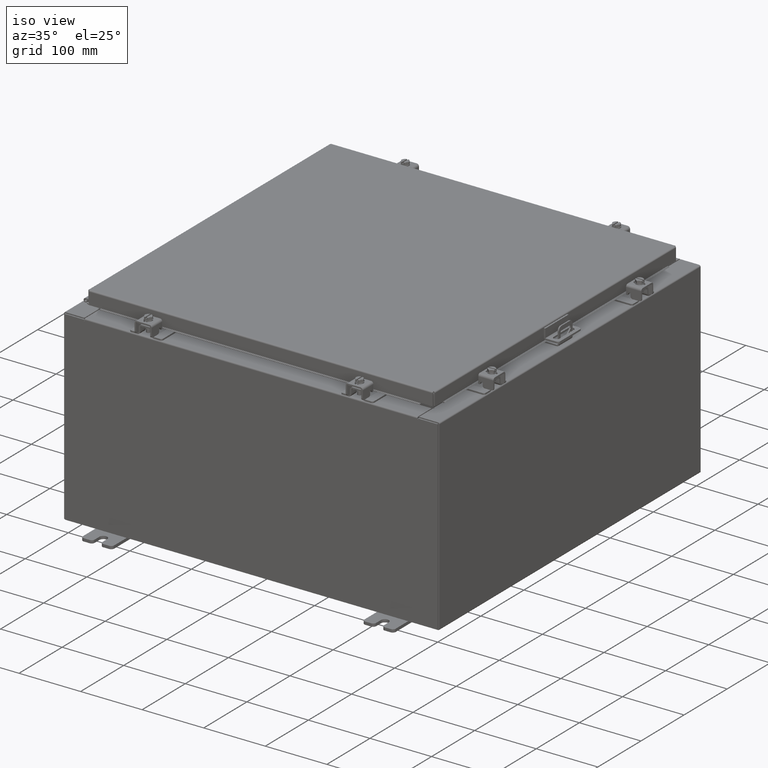
[diagram: clean part render]
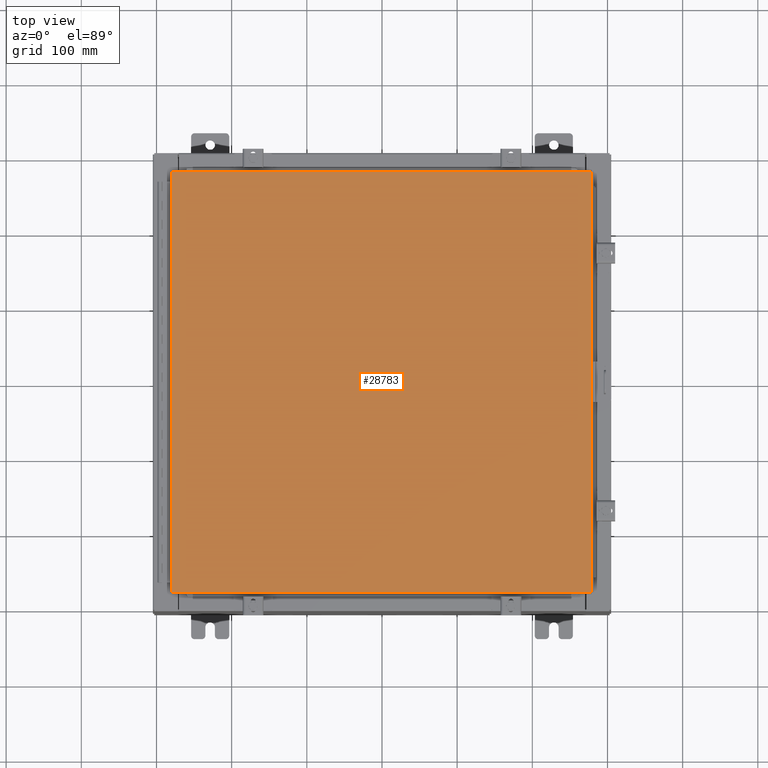
[diagram: tour spotlight — one face highlighted and labeled with its STEP entity id]
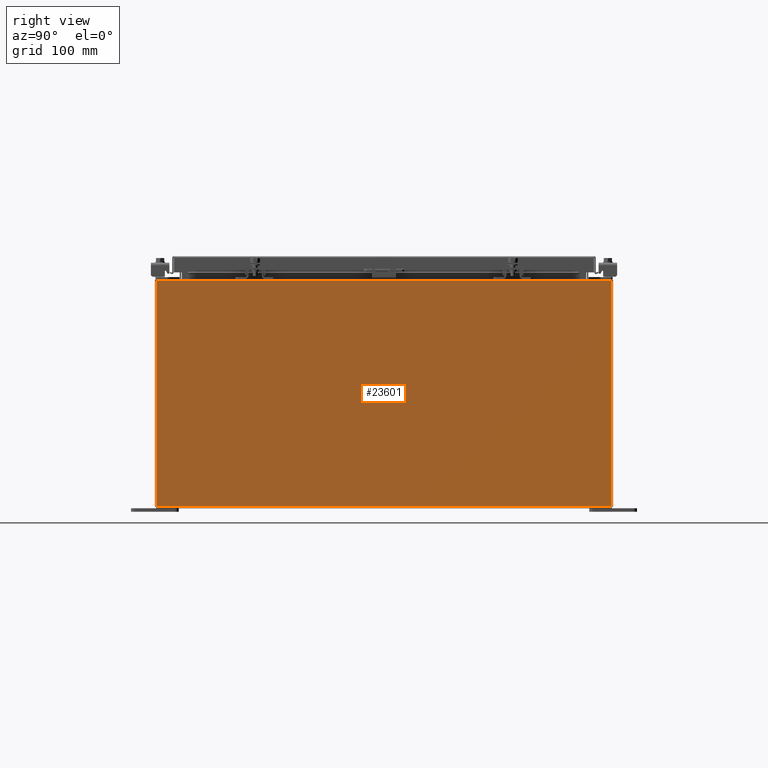
[diagram: tour spotlight — one face highlighted and labeled with its STEP entity id]
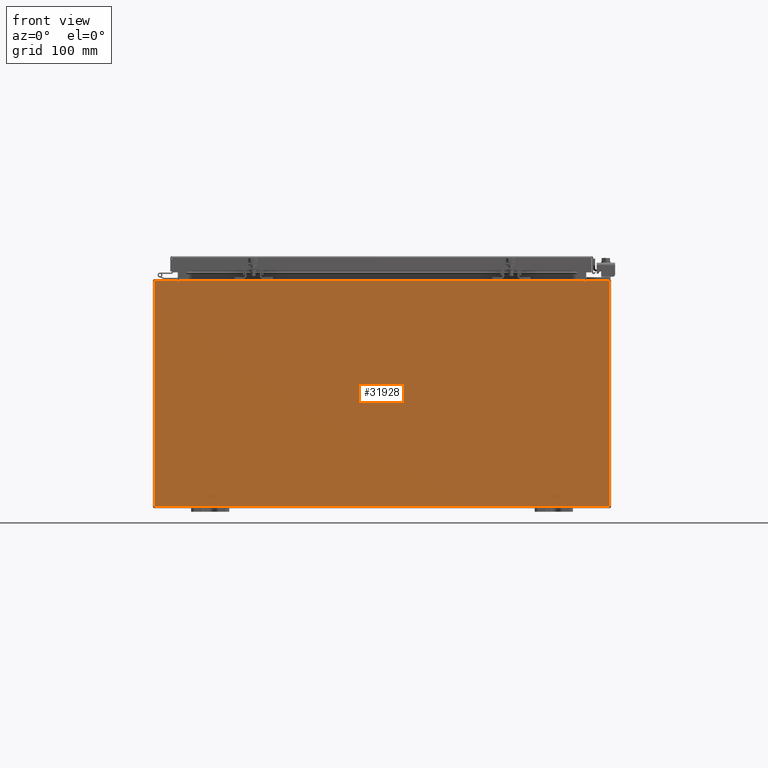
[diagram: tour spotlight — one face highlighted and labeled with its STEP entity id]
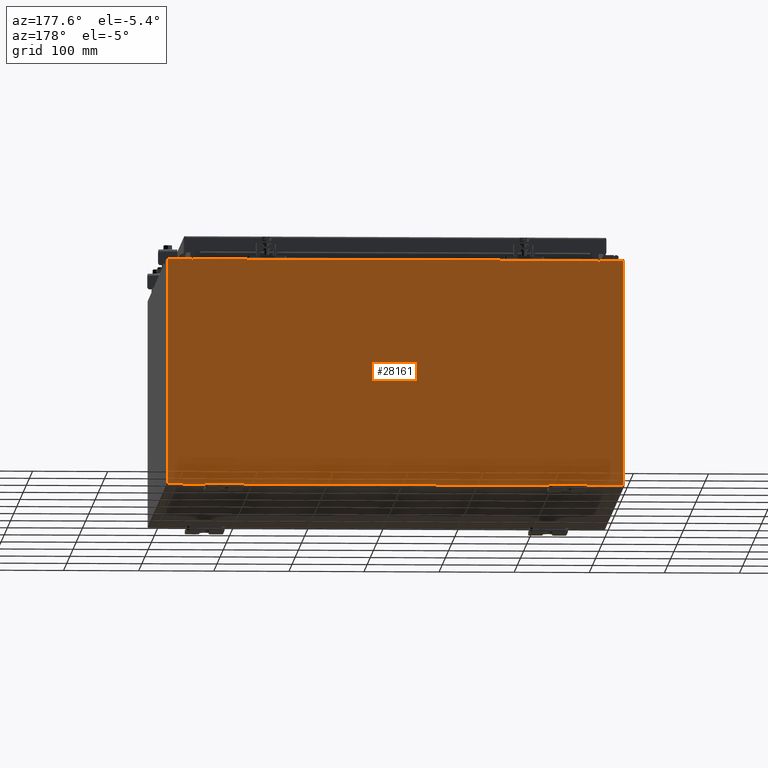
[diagram: tour spotlight — one face highlighted and labeled with its STEP entity id]
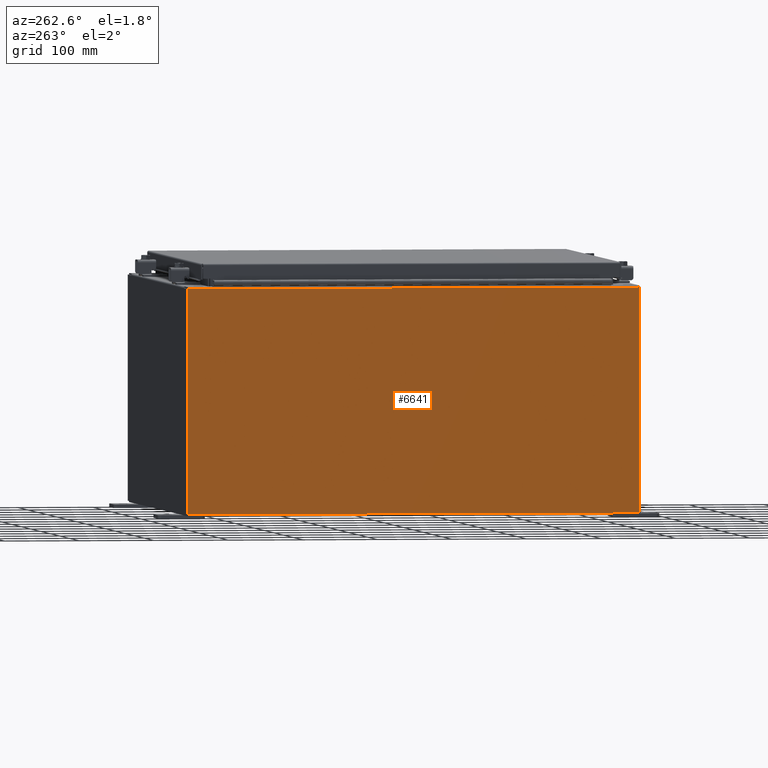
[diagram: tour spotlight — one face highlighted and labeled with its STEP entity id]
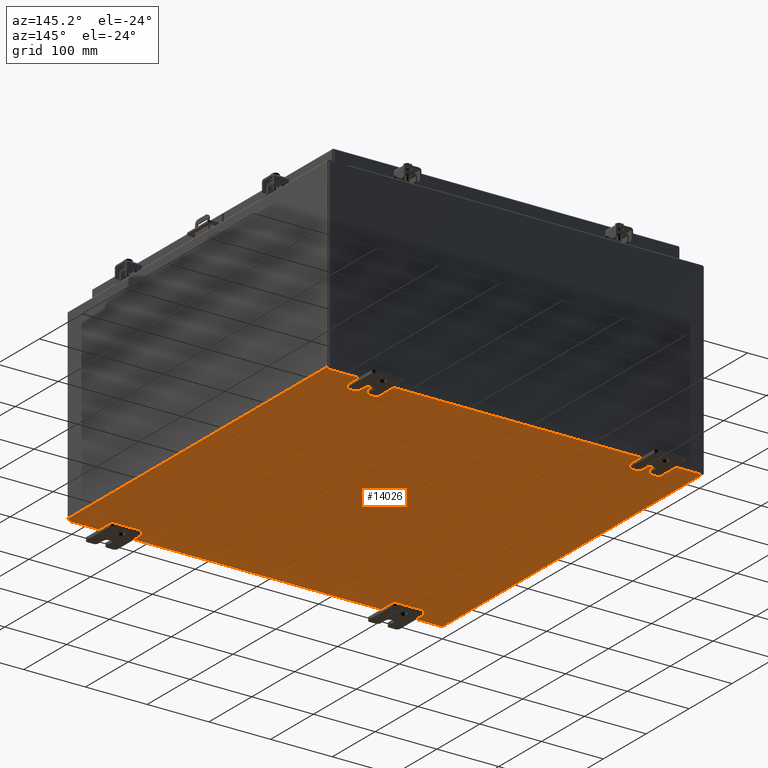
[diagram: tour spotlight — one face highlighted and labeled with its STEP entity id]
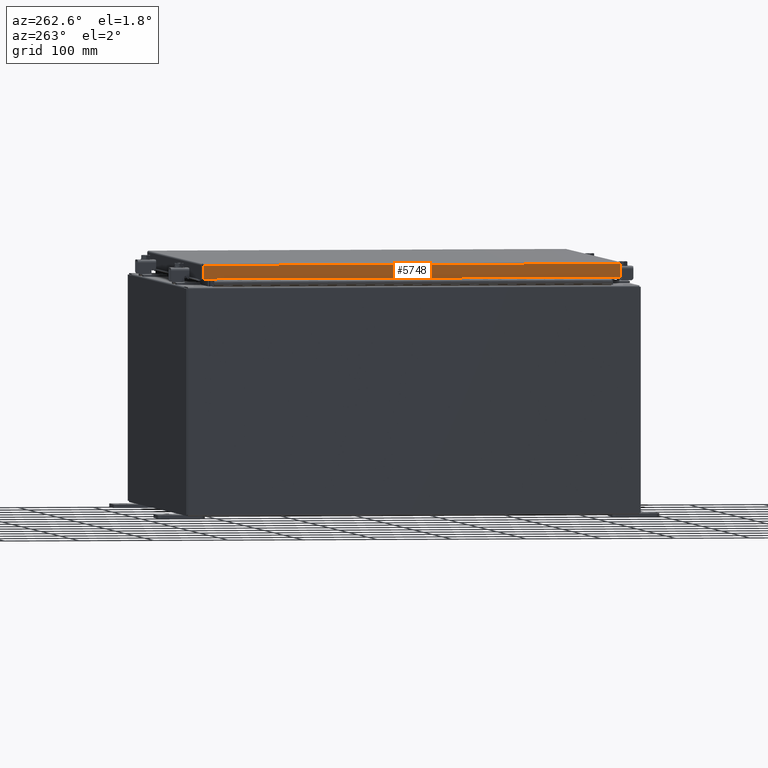
[diagram: tour spotlight — one face highlighted and labeled with its STEP entity id]
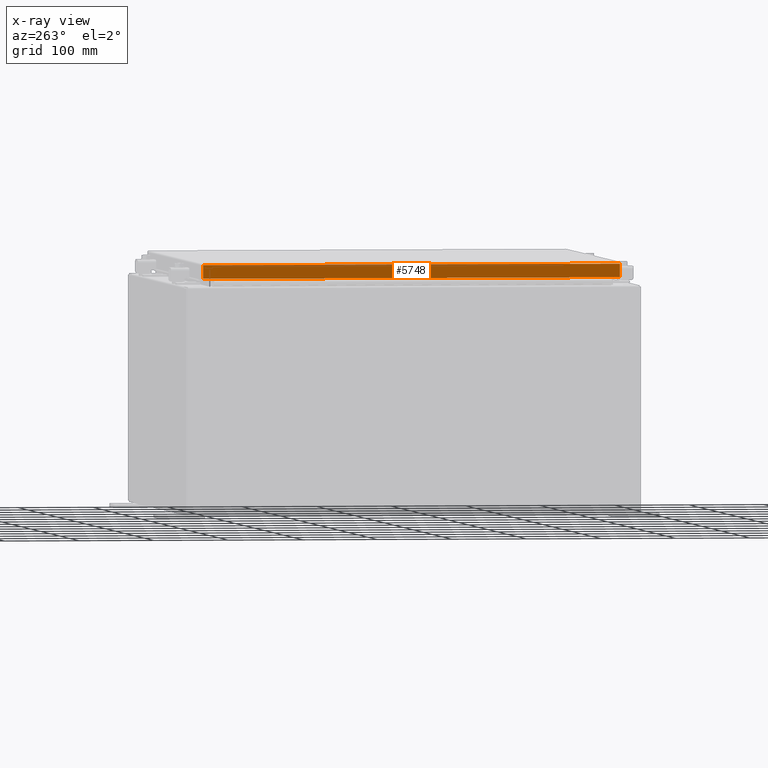
[diagram: x-ray of the same camera — body ghosted, this tour face saturated]
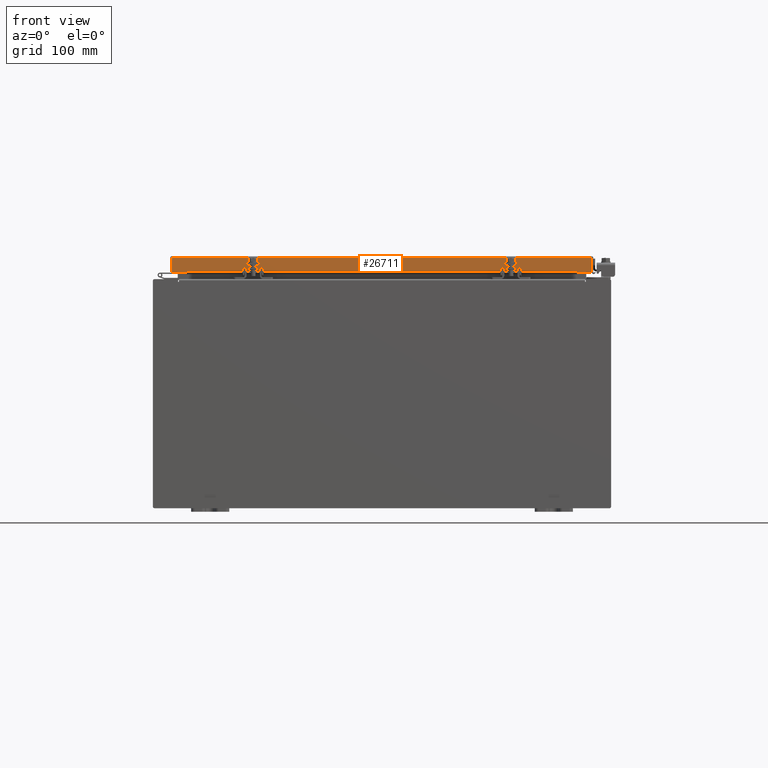
[diagram: tour spotlight — one face highlighted and labeled with its STEP entity id]
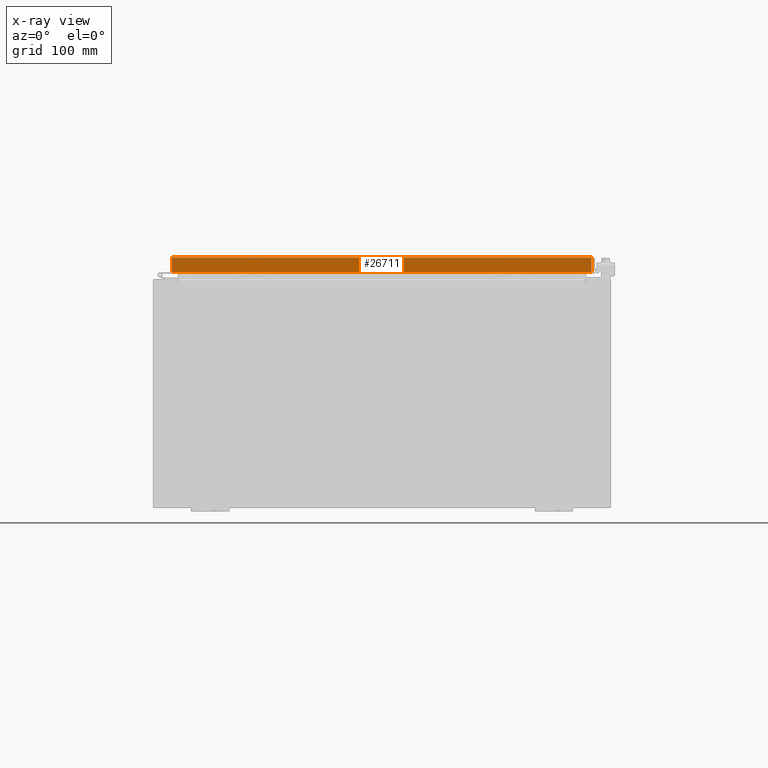
[diagram: x-ray of the same camera — body ghosted, this tour face saturated]
A machine part: a face-by-face anatomy tour. The part has 1709 B-rep faces; the first image is the clean iso view, then the 8 largest visible faces are spotlighted one at a time (largest first), each with its STEP entity span.

Face 1 — top view, entity #28783. In plain terms, the highlighted planar face has unit normal (0, 0, -1).
Definition (entity closure, byte-faithful):
#113 = LINE ( 'NONE', #10525, #25853 ) ;
#154 = CARTESIAN_POINT ( 'NONE',  ( 0.0000000000000000000, 0.0000000000000000000, 0.0000000000000000000 ) ) ;
#442 = VERTEX_POINT ( 'NONE', #1909 ) ;
#1909 = CARTESIAN_POINT ( 'NONE',  ( -10.99030000000000000, -11.00630000000000100, 8.878505979408856000E-016 ) ) ;
#2041 = ORIENTED_EDGE ( 'NONE', *, *, #30666, .T. ) ;
#2174 = FACE_OUTER_BOUND ( 'NONE', #20280, .T. ) ;
#4213 = CARTESIAN_POINT ( 'NONE',  ( 10.99029999999999800, 11.00629999999999600, -2.048885995248197400E-016 ) ) ;
#4281 = VECTOR ( 'NONE', #15780, 39.37007874015748100 ) ;
#5032 = PLANE ( 'NONE',  #29920 ) ;
#6039 = DIRECTION ( 'NONE',  ( 0.0000000000000000000, 1.000000000000000000, 0.0000000000000000000 ) ) ;
#6413 = LINE ( 'NONE', #26022, #32459 ) ;
#6589 = VERTEX_POINT ( 'NONE', #13123 ) ;
#6801 = VERTEX_POINT ( 'NONE', #4213 ) ;
#8318 = EDGE_CURVE ( 'NONE', #6589, #6801, #6413, .T. ) ;
#8830 = LINE ( 'NONE', #14427, #28162 ) ;
#10004 = DIRECTION ( 'NONE',  ( 0.0000000000000000000, 0.0000000000000000000, -1.000000000000000000 ) ) ;
#10404 = DIRECTION ( 'NONE',  ( 1.000000000000000000, -0.0000000000000000000, -0.0000000000000000000 ) ) ;
#10525 = CARTESIAN_POINT ( 'NONE',  ( -10.99030000000000000, -11.00630000000000100, 8.878505979408856000E-016 ) ) ;
#10740 = CARTESIAN_POINT ( 'NONE',  ( -10.99030000000000500, 11.00629999999999600, -1.348849946871729900E-015 ) ) ;
#11997 = DIRECTION ( 'NONE',  ( -1.000000000000000000, -0.0000000000000000000, -0.0000000000000000000 ) ) ;
#13123 = CARTESIAN_POINT ( 'NONE',  ( 10.99029999999999600, -11.00630000000000100, -2.048885995248197400E-016 ) ) ;
#13186 = ORIENTED_EDGE ( 'NONE', *, *, #30604, .T. ) ;
#14427 = CARTESIAN_POINT ( 'NONE',  ( 10.99029999999999800, 11.00629999999999600, -2.048885995248197400E-016 ) ) ;
#15780 = DIRECTION ( 'NONE',  ( 0.0000000000000000000, -1.000000000000000000, 0.0000000000000000000 ) ) ;
#17549 = LINE ( 'NONE', #10740, #4281 ) ;
#19850 = VERTEX_POINT ( 'NONE', #22688 ) ;
#20280 = EDGE_LOOP ( 'NONE', ( #13186, #31266, #31879, #2041 ) ) ;
#22688 = CARTESIAN_POINT ( 'NONE',  ( -10.99030000000000500, 11.00629999999999600, -1.348849946871729900E-015 ) ) ;
#23322 = EDGE_CURVE ( 'NONE', #6801, #19850, #8830, .T. ) ;
#25853 = VECTOR ( 'NONE', #10404, 39.37007874015748100 ) ;
#26022 = CARTESIAN_POINT ( 'NONE',  ( 10.99029999999999600, -11.00630000000000100, -2.048885995248197400E-016 ) ) ;
#27656 = DIRECTION ( 'NONE',  ( -1.000000000000000000, 0.0000000000000000000, -0.0000000000000000000 ) ) ;
#28162 = VECTOR ( 'NONE', #11997, 39.37007874015748100 ) ;
#28783 = ADVANCED_FACE ( 'NONE', ( #2174 ), #5032, .F. ) ;
#29920 = AXIS2_PLACEMENT_3D ( 'NONE', #154, #10004, #27656 ) ;
#30604 = EDGE_CURVE ( 'NONE', #442, #6589, #113, .T. ) ;
#30666 = EDGE_CURVE ( 'NONE', #19850, #442, #17549, .T. ) ;
#31266 = ORIENTED_EDGE ( 'NONE', *, *, #8318, .T. ) ;
#31879 = ORIENTED_EDGE ( 'NONE', *, *, #23322, .T. ) ;
#32459 = VECTOR ( 'NONE', #6039, 39.37007874015748100 ) ;

Face 2 — right view, entity #23601. In plain terms, the highlighted planar face has unit normal (-1, 0, 0).
Definition (entity closure, byte-faithful):
#103 = CARTESIAN_POINT ( 'NONE',  ( 11.99999999999999800, -11.92530000000000400, -4.204500978058384000E-014 ) ) ;
#229 = VERTEX_POINT ( 'NONE', #2768 ) ;
#578 = CARTESIAN_POINT ( 'NONE',  ( 11.99999999999999800, -11.92530000000000400, 0.01299999999999984700 ) ) ;
#1454 = ORIENTED_EDGE ( 'NONE', *, *, #29105, .T. ) ;
#2739 = AXIS2_PLACEMENT_3D ( 'NONE', #13084, #30792, #15611 ) ;
#2768 = CARTESIAN_POINT ( 'NONE',  ( 12.00000000000004100, -11.92530000000000400, 11.83760000000000000 ) ) ;
#3066 = VECTOR ( 'NONE', #6191, 39.37007874015748100 ) ;
#3585 = LINE ( 'NONE', #103, #29506 ) ;
#3956 = EDGE_CURVE ( 'NONE', #229, #22089, #3585, .T. ) ;
#6166 = EDGE_CURVE ( 'NONE', #8174, #229, #29761, .T. ) ;
#6191 = DIRECTION ( 'NONE',  ( -0.0000000000000000000, -1.000000000000000000, -0.0000000000000000000 ) ) ;
#7369 = CARTESIAN_POINT ( 'NONE',  ( 11.99999999999999800, -11.92530000000000400, 0.01299999999999984700 ) ) ;
#7465 = DIRECTION ( 'NONE',  ( -3.482016343714355500E-015, 0.0000000000000000000, -1.000000000000000000 ) ) ;
#8174 = VERTEX_POINT ( 'NONE', #30602 ) ;
#8499 = ORIENTED_EDGE ( 'NONE', *, *, #6166, .T. ) ;
#8973 = VERTEX_POINT ( 'NONE', #21523 ) ;
#9864 = DIRECTION ( 'NONE',  ( -0.0000000000000000000, -1.000000000000000000, -0.0000000000000000000 ) ) ;
#13084 = CARTESIAN_POINT ( 'NONE',  ( 11.99999999999999800, 0.0000000000000000000, -4.204500978058384000E-014 ) ) ;
#13595 = CARTESIAN_POINT ( 'NONE',  ( 12.00000000000004100, 11.92529999999999800, 11.83760000000000000 ) ) ;
#13750 = LINE ( 'NONE', #31970, #27205 ) ;
#14240 = VECTOR ( 'NONE', #9864, 39.37007874015748100 ) ;
#14256 = DIRECTION ( 'NONE',  ( 3.482016343714355500E-015, -1.832640180902292400E-016, 1.000000000000000000 ) ) ;
#15611 = DIRECTION ( 'NONE',  ( 3.482016343714355100E-015, 0.0000000000000000000, 1.000000000000000000 ) ) ;
#15716 = ORIENTED_EDGE ( 'NONE', *, *, #16547, .F. ) ;
#15873 = FACE_OUTER_BOUND ( 'NONE', #31564, .T. ) ;
#16547 = EDGE_CURVE ( 'NONE', #8973, #22089, #18195, .T. ) ;
#18195 = LINE ( 'NONE', #7369, #14240 ) ;
#20868 = ORIENTED_EDGE ( 'NONE', *, *, #3956, .T. ) ;
#21523 = CARTESIAN_POINT ( 'NONE',  ( 11.99999999999999800, 11.92529999999999600, 0.01299999999999984700 ) ) ;
#22089 = VERTEX_POINT ( 'NONE', #578 ) ;
#23601 = ADVANCED_FACE ( 'NONE', ( #15873 ), #25559, .F. ) ;
#25559 = PLANE ( 'NONE',  #2739 ) ;
#27205 = VECTOR ( 'NONE', #14256, 39.37007874015748100 ) ;
#29105 = EDGE_CURVE ( 'NONE', #8973, #8174, #13750, .T. ) ;
#29506 = VECTOR ( 'NONE', #7465, 39.37007874015748100 ) ;
#29761 = LINE ( 'NONE', #13595, #3066 ) ;
#30602 = CARTESIAN_POINT ( 'NONE',  ( 12.00000000000004100, 11.92529999999999600, 11.83760000000000000 ) ) ;
#30792 = DIRECTION ( 'NONE',  ( -1.000000000000000000, 0.0000000000000000000, 3.482016343714355100E-015 ) ) ;
#31564 = EDGE_LOOP ( 'NONE', ( #8499, #20868, #15716, #1454 ) ) ;
#31970 = CARTESIAN_POINT ( 'NONE',  ( 11.99999999999999800, 11.92529999999999800, -3.985953138565242700E-014 ) ) ;

Face 3 — front view, entity #31928. In plain terms, the highlighted planar face has unit normal (-0, 1, -0).
Definition (entity closure, byte-faithful):
#593 = EDGE_CURVE ( 'NONE', #26086, #9355, #11848, .T. ) ;
#681 = EDGE_CURVE ( 'NONE', #27405, #3138, #28864, .T. ) ;
#748 = LINE ( 'NONE', #8692, #18988 ) ;
#947 = ORIENTED_EDGE ( 'NONE', *, *, #27692, .F. ) ;
#999 = CARTESIAN_POINT ( 'NONE',  ( -10.67455000000000200, 0.0000000000000000000, 5.925300000000000000 ) ) ;
#1530 = DIRECTION ( 'NONE',  ( 1.000000000000000000, 0.0000000000000000000, 0.0000000000000000000 ) ) ;
#1613 = ORIENTED_EDGE ( 'NONE', *, *, #20791, .F. ) ;
#2273 = FACE_OUTER_BOUND ( 'NONE', #26865, .T. ) ;
#2829 = ORIENTED_EDGE ( 'NONE', *, *, #593, .T. ) ;
#2980 = VECTOR ( 'NONE', #7567, 39.37007874015748100 ) ;
#3138 = VERTEX_POINT ( 'NONE', #6871 ) ;
#3639 = ORIENTED_EDGE ( 'NONE', *, *, #12928, .T. ) ;
#4611 = VERTEX_POINT ( 'NONE', #30053 ) ;
#4618 = CIRCLE ( 'NONE', #21384, 0.01867499999999949400 ) ;
#4791 = DIRECTION ( 'NONE',  ( -0.0000000000000000000, -0.0000000000000000000, 1.000000000000000000 ) ) ;
#5111 = CARTESIAN_POINT ( 'NONE',  ( -10.63720000000000400, -0.0000000000000000000, 0.0000000000000000000 ) ) ;
#5262 = VECTOR ( 'NONE', #4791, 39.37007874015748100 ) ;
#5301 = LINE ( 'NONE', #25095, #11890 ) ;
#5455 = CARTESIAN_POINT ( 'NONE',  ( -11.92530000000000000, 0.0000000000000000000, -5.925299999999999100 ) ) ;
#5613 = EDGE_CURVE ( 'NONE', #3138, #14082, #4618, .T. ) ;
#5690 = CARTESIAN_POINT ( 'NONE',  ( 10.63720000000000400, 0.0000000000000000000, 5.874950000000001000 ) ) ;
#5868 = EDGE_CURVE ( 'NONE', #27630, #26086, #29370, .T. ) ;
#6565 = ORIENTED_EDGE ( 'NONE', *, *, #13876, .F. ) ;
#6871 = CARTESIAN_POINT ( 'NONE',  ( 10.67455000000000200, 0.0000000000000000000, 5.874950000000001000 ) ) ;
#6937 = ORIENTED_EDGE ( 'NONE', *, *, #5613, .F. ) ;
#7567 = DIRECTION ( 'NONE',  ( 0.0000000000000000000, 0.0000000000000000000, -1.000000000000000000 ) ) ;
#7685 = CARTESIAN_POINT ( 'NONE',  ( 10.63720000000000400, 0.0000000000000000000, 5.912300000000001000 ) ) ;
#8692 = CARTESIAN_POINT ( 'NONE',  ( 11.92530000000000000, 0.0000000000000000000, 5.925300000000001800 ) ) ;
#8764 = CIRCLE ( 'NONE', #13206, 0.01867499999999949400 ) ;
#9146 = CARTESIAN_POINT ( 'NONE',  ( 10.65587500000000200, 0.0000000000000000000, 5.874950000000001000 ) ) ;
#9355 = VERTEX_POINT ( 'NONE', #23279 ) ;
#9779 = DIRECTION ( 'NONE',  ( 0.0000000000000000000, 0.0000000000000000000, 1.000000000000000000 ) ) ;
#9989 = CARTESIAN_POINT ( 'NONE',  ( -10.65587500000000200, 0.0000000000000000000, 5.874950000000001000 ) ) ;
#10012 = DIRECTION ( 'NONE',  ( 0.0000000000000000000, 0.0000000000000000000, 1.000000000000000000 ) ) ;
#10942 = DIRECTION ( 'NONE',  ( 0.0000000000000000000, -1.000000000000000000, 0.0000000000000000000 ) ) ;
#10982 = LINE ( 'NONE', #18877, #29563 ) ;
#11103 = LINE ( 'NONE', #5111, #31292 ) ;
#11641 = DIRECTION ( 'NONE',  ( 0.0000000000000000000, 0.0000000000000000000, -1.000000000000000000 ) ) ;
#11802 = ORIENTED_EDGE ( 'NONE', *, *, #681, .F. ) ;
#11848 = LINE ( 'NONE', #24829, #5262 ) ;
#11890 = VECTOR ( 'NONE', #10012, 39.37007874015748100 ) ;
#11904 = CARTESIAN_POINT ( 'NONE',  ( -10.63720000000000400, -1.707404996040164500E-016, 5.912300000000001000 ) ) ;
#12505 = DIRECTION ( 'NONE',  ( 0.0000000000000000000, 0.0000000000000000000, -1.000000000000000000 ) ) ;
#12928 = EDGE_CURVE ( 'NONE', #17511, #19185, #24915, .T. ) ;
#13206 = AXIS2_PLACEMENT_3D ( 'NONE', #9989, #27642, #12505 ) ;
#13220 = EDGE_CURVE ( 'NONE', #27693, #17321, #8764, .T. ) ;
#13699 = CARTESIAN_POINT ( 'NONE',  ( -11.92530000000000000, 0.0000000000000000000, 5.925300000000000000 ) ) ;
#13876 = EDGE_CURVE ( 'NONE', #17321, #30203, #5301, .T. ) ;
#14082 = VERTEX_POINT ( 'NONE', #5690 ) ;
#15147 = CARTESIAN_POINT ( 'NONE',  ( -11.92530000000000000, 0.0000000000000000000, -5.925299999999999100 ) ) ;
#15898 = VECTOR ( 'NONE', #17684, 39.37007874015748100 ) ;
#16147 = DIRECTION ( 'NONE',  ( 0.0000000000000000000, 0.0000000000000000000, -1.000000000000000000 ) ) ;
#17077 = VECTOR ( 'NONE', #28862, 39.37007874015748100 ) ;
#17321 = VERTEX_POINT ( 'NONE', #18742 ) ;
#17424 = VECTOR ( 'NONE', #1530, 39.37007874015748100 ) ;
#17511 = VERTEX_POINT ( 'NONE', #11904 ) ;
#17609 = VECTOR ( 'NONE', #9779, 39.37007874015748100 ) ;
#17684 = DIRECTION ( 'NONE',  ( -1.000000000000000000, -0.0000000000000000000, -0.0000000000000000000 ) ) ;
#18645 = LINE ( 'NONE', #13699, #17077 ) ;
#18742 = CARTESIAN_POINT ( 'NONE',  ( -10.67455000000000200, 0.0000000000000000000, 5.874950000000001000 ) ) ;
#18864 = EDGE_CURVE ( 'NONE', #27405, #4611, #10982, .T. ) ;
#18877 = CARTESIAN_POINT ( 'NONE',  ( -11.92530000000000000, 0.0000000000000000000, 5.925300000000000000 ) ) ;
#18988 = VECTOR ( 'NONE', #16147, 39.37007874015748100 ) ;
#19185 = VERTEX_POINT ( 'NONE', #7685 ) ;
#20077 = DIRECTION ( 'NONE',  ( 0.0000000000000000000, 0.0000000000000000000, -1.000000000000000000 ) ) ;
#20406 = ORIENTED_EDGE ( 'NONE', *, *, #27401, .T. ) ;
#20791 = EDGE_CURVE ( 'NONE', #14082, #19185, #31886, .T. ) ;
#20928 = PLANE ( 'NONE',  #23235 ) ;
#21384 = AXIS2_PLACEMENT_3D ( 'NONE', #9146, #26772, #11641 ) ;
#22398 = ORIENTED_EDGE ( 'NONE', *, *, #31509, .T. ) ;
#23235 = AXIS2_PLACEMENT_3D ( 'NONE', #26040, #10942, #28607 ) ;
#23279 = CARTESIAN_POINT ( 'NONE',  ( -11.92530000000000000, 0.0000000000000000000, 5.925300000000000000 ) ) ;
#23743 = CARTESIAN_POINT ( 'NONE',  ( 10.67455000000000200, 0.0000000000000000000, 5.925300000000001800 ) ) ;
#23837 = DIRECTION ( 'NONE',  ( 1.000000000000000000, 0.0000000000000000000, 4.581600452255731000E-017 ) ) ;
#24469 = ORIENTED_EDGE ( 'NONE', *, *, #18864, .T. ) ;
#24623 = CARTESIAN_POINT ( 'NONE',  ( 11.92530000000000000, 0.0000000000000000000, -5.925299999999999100 ) ) ;
#24829 = CARTESIAN_POINT ( 'NONE',  ( -11.92530000000000000, 0.0000000000000000000, 5.925300000000000000 ) ) ;
#24915 = LINE ( 'NONE', #31561, #17424 ) ;
#25095 = CARTESIAN_POINT ( 'NONE',  ( -10.67455000000000200, -0.0000000000000000000, 0.0000000000000000000 ) ) ;
#26040 = CARTESIAN_POINT ( 'NONE',  ( 0.0000000000000000000, 0.0000000000000000000, 0.0000000000000000000 ) ) ;
#26086 = VERTEX_POINT ( 'NONE', #5455 ) ;
#26772 = DIRECTION ( 'NONE',  ( -0.0000000000000000000, 1.000000000000000000, -0.0000000000000000000 ) ) ;
#26865 = EDGE_LOOP ( 'NONE', ( #6565, #31627, #947, #3639, #1613, #6937, #11802, #24469, #20406, #27617, #2829, #22398 ) ) ;
#27296 = CARTESIAN_POINT ( 'NONE',  ( -10.63720000000000400, -0.0000000000000000000, 5.874950000000001000 ) ) ;
#27401 = EDGE_CURVE ( 'NONE', #4611, #27630, #748, .T. ) ;
#27405 = VERTEX_POINT ( 'NONE', #23743 ) ;
#27617 = ORIENTED_EDGE ( 'NONE', *, *, #5868, .T. ) ;
#27630 = VERTEX_POINT ( 'NONE', #24623 ) ;
#27642 = DIRECTION ( 'NONE',  ( -0.0000000000000000000, 1.000000000000000000, -0.0000000000000000000 ) ) ;
#27692 = EDGE_CURVE ( 'NONE', #17511, #27693, #11103, .T. ) ;
#27693 = VERTEX_POINT ( 'NONE', #27296 ) ;
#27722 = CARTESIAN_POINT ( 'NONE',  ( 10.67455000000000200, 0.0000000000000000000, 0.0000000000000000000 ) ) ;
#28607 = DIRECTION ( 'NONE',  ( 0.0000000000000000000, -0.0000000000000000000, -1.000000000000000000 ) ) ;
#28862 = DIRECTION ( 'NONE',  ( 1.000000000000000000, 0.0000000000000000000, 4.581600452255731000E-017 ) ) ;
#28864 = LINE ( 'NONE', #27722, #2980 ) ;
#29370 = LINE ( 'NONE', #15147, #15898 ) ;
#29563 = VECTOR ( 'NONE', #23837, 39.37007874015748100 ) ;
#29989 = CARTESIAN_POINT ( 'NONE',  ( 10.63720000000000400, 0.0000000000000000000, 0.0000000000000000000 ) ) ;
#30053 = CARTESIAN_POINT ( 'NONE',  ( 11.92530000000000000, 0.0000000000000000000, 5.925300000000001800 ) ) ;
#30203 = VERTEX_POINT ( 'NONE', #999 ) ;
#31292 = VECTOR ( 'NONE', #20077, 39.37007874015748100 ) ;
#31509 = EDGE_CURVE ( 'NONE', #9355, #30203, #18645, .T. ) ;
#31561 = CARTESIAN_POINT ( 'NONE',  ( -10.63720000000000400, -1.707404996040164500E-016, 5.912300000000001000 ) ) ;
#31627 = ORIENTED_EDGE ( 'NONE', *, *, #13220, .F. ) ;
#31886 = LINE ( 'NONE', #29989, #17609 ) ;
#31928 = ADVANCED_FACE ( 'NONE', ( #2273 ), #20928, .F. ) ;

Face 4 — auxiliary view, entity #28161. In plain terms, the highlighted planar face has unit normal (0, -1, 0).
Definition (entity closure, byte-faithful):
#209 = CARTESIAN_POINT ( 'NONE',  ( -10.67455000000000200, 0.0000000000000000000, 5.874950000000001000 ) ) ;
#895 = LINE ( 'NONE', #2860, #26672 ) ;
#1443 = VERTEX_POINT ( 'NONE', #30574 ) ;
#1761 = EDGE_CURVE ( 'NONE', #31567, #28486, #25653, .T. ) ;
#2678 = LINE ( 'NONE', #22715, #15058 ) ;
#2793 = EDGE_LOOP ( 'NONE', ( #6756, #7799, #29432, #11905, #27572, #32238, #29410, #16721, #22687, #23435, #21373, #10671 ) ) ;
#2806 = CARTESIAN_POINT ( 'NONE',  ( 10.67455000000000200, 0.0000000000000000000, 5.874950000000001000 ) ) ;
#2860 = CARTESIAN_POINT ( 'NONE',  ( 10.67455000000000200, 0.0000000000000000000, 0.0000000000000000000 ) ) ;
#2911 = LINE ( 'NONE', #6984, #8665 ) ;
#3157 = CARTESIAN_POINT ( 'NONE',  ( 11.92530000000000000, 0.0000000000000000000, -5.925299999999999100 ) ) ;
#5082 = DIRECTION ( 'NONE',  ( 0.0000000000000000000, -1.000000000000000000, 0.0000000000000000000 ) ) ;
#5463 = EDGE_CURVE ( 'NONE', #15247, #26019, #8494, .T. ) ;
#5586 = CIRCLE ( 'NONE', #27876, 0.01867499999999949400 ) ;
#5771 = LINE ( 'NONE', #8899, #24988 ) ;
#5967 = DIRECTION ( 'NONE',  ( 1.000000000000000000, 0.0000000000000000000, 4.581600452255731000E-017 ) ) ;
#6756 = ORIENTED_EDGE ( 'NONE', *, *, #31765, .F. ) ;
#6984 = CARTESIAN_POINT ( 'NONE',  ( -10.63720000000000400, -1.707404996040164500E-016, 5.912300000000001000 ) ) ;
#7076 = LINE ( 'NONE', #26957, #20413 ) ;
#7207 = EDGE_CURVE ( 'NONE', #18221, #13199, #15000, .T. ) ;
#7388 = VECTOR ( 'NONE', #30610, 39.37007874015748100 ) ;
#7684 = DIRECTION ( 'NONE',  ( 0.0000000000000000000, 0.0000000000000000000, 1.000000000000000000 ) ) ;
#7799 = ORIENTED_EDGE ( 'NONE', *, *, #29738, .F. ) ;
#8494 = LINE ( 'NONE', #26120, #21829 ) ;
#8665 = VECTOR ( 'NONE', #12085, 39.37007874015748100 ) ;
#8899 = CARTESIAN_POINT ( 'NONE',  ( 11.92530000000000000, 0.0000000000000000000, 5.925300000000001800 ) ) ;
#10095 = CIRCLE ( 'NONE', #26345, 0.01867499999999949400 ) ;
#10099 = CARTESIAN_POINT ( 'NONE',  ( -11.92530000000000000, 0.0000000000000000000, -5.925299999999999100 ) ) ;
#10293 = DIRECTION ( 'NONE',  ( 0.0000000000000000000, 0.0000000000000000000, 1.000000000000000000 ) ) ;
#10671 = ORIENTED_EDGE ( 'NONE', *, *, #7207, .T. ) ;
#10921 = CARTESIAN_POINT ( 'NONE',  ( -10.65587500000000200, 0.0000000000000000000, 5.874950000000001000 ) ) ;
#11011 = DIRECTION ( 'NONE',  ( -1.000000000000000000, -0.0000000000000000000, -0.0000000000000000000 ) ) ;
#11724 = DIRECTION ( 'NONE',  ( -0.0000000000000000000, 1.000000000000000000, -0.0000000000000000000 ) ) ;
#11820 = DIRECTION ( 'NONE',  ( 0.0000000000000000000, 0.0000000000000000000, -1.000000000000000000 ) ) ;
#11905 = ORIENTED_EDGE ( 'NONE', *, *, #18286, .T. ) ;
#11919 = VERTEX_POINT ( 'NONE', #209 ) ;
#12085 = DIRECTION ( 'NONE',  ( 1.000000000000000000, 0.0000000000000000000, 0.0000000000000000000 ) ) ;
#12895 = CARTESIAN_POINT ( 'NONE',  ( -11.92530000000000000, 0.0000000000000000000, 5.925300000000000000 ) ) ;
#13199 = VERTEX_POINT ( 'NONE', #17472 ) ;
#13422 = DIRECTION ( 'NONE',  ( 0.0000000000000000000, 0.0000000000000000000, -1.000000000000000000 ) ) ;
#14378 = VERTEX_POINT ( 'NONE', #19753 ) ;
#14981 = CARTESIAN_POINT ( 'NONE',  ( 0.0000000000000000000, 0.0000000000000000000, 0.0000000000000000000 ) ) ;
#15000 = LINE ( 'NONE', #31011, #27670 ) ;
#15058 = VECTOR ( 'NONE', #7684, 39.37007874015748100 ) ;
#15247 = VERTEX_POINT ( 'NONE', #3157 ) ;
#15316 = DIRECTION ( 'NONE',  ( 0.0000000000000000000, 0.0000000000000000000, -1.000000000000000000 ) ) ;
#16552 = VECTOR ( 'NONE', #10293, 39.37007874015748100 ) ;
#16721 = ORIENTED_EDGE ( 'NONE', *, *, #26282, .T. ) ;
#16976 = FACE_OUTER_BOUND ( 'NONE', #2793, .T. ) ;
#17472 = CARTESIAN_POINT ( 'NONE',  ( -10.67455000000000200, 0.0000000000000000000, 5.925300000000000000 ) ) ;
#18221 = VERTEX_POINT ( 'NONE', #29455 ) ;
#18286 = EDGE_CURVE ( 'NONE', #19100, #28486, #2911, .T. ) ;
#18957 = EDGE_CURVE ( 'NONE', #19100, #1443, #7076, .T. ) ;
#19100 = VERTEX_POINT ( 'NONE', #22384 ) ;
#19753 = CARTESIAN_POINT ( 'NONE',  ( 10.67455000000000200, 0.0000000000000000000, 5.925300000000001800 ) ) ;
#20183 = VERTEX_POINT ( 'NONE', #20247 ) ;
#20247 = CARTESIAN_POINT ( 'NONE',  ( 11.92530000000000000, 0.0000000000000000000, 5.925300000000001800 ) ) ;
#20413 = VECTOR ( 'NONE', #11820, 39.37007874015748100 ) ;
#20717 = LINE ( 'NONE', #12895, #7388 ) ;
#20887 = DIRECTION ( 'NONE',  ( 1.000000000000000000, 0.0000000000000000000, 4.581600452255731000E-017 ) ) ;
#20952 = CARTESIAN_POINT ( 'NONE',  ( -11.92530000000000000, 0.0000000000000000000, 5.925300000000000000 ) ) ;
#21373 = ORIENTED_EDGE ( 'NONE', *, *, #24863, .T. ) ;
#21626 = CARTESIAN_POINT ( 'NONE',  ( 10.63720000000000400, 0.0000000000000000000, 5.874950000000001000 ) ) ;
#21829 = VECTOR ( 'NONE', #11011, 39.37007874015748100 ) ;
#22384 = CARTESIAN_POINT ( 'NONE',  ( -10.63720000000000400, -1.707404996040164500E-016, 5.912300000000001000 ) ) ;
#22587 = DIRECTION ( 'NONE',  ( 0.0000000000000000000, -0.0000000000000000000, -1.000000000000000000 ) ) ;
#22657 = VERTEX_POINT ( 'NONE', #2806 ) ;
#22687 = ORIENTED_EDGE ( 'NONE', *, *, #22957, .T. ) ;
#22715 = CARTESIAN_POINT ( 'NONE',  ( -10.67455000000000200, -0.0000000000000000000, 0.0000000000000000000 ) ) ;
#22957 = EDGE_CURVE ( 'NONE', #20183, #15247, #5771, .T. ) ;
#23435 = ORIENTED_EDGE ( 'NONE', *, *, #5463, .T. ) ;
#23796 = LINE ( 'NONE', #20952, #30584 ) ;
#23941 = DIRECTION ( 'NONE',  ( 0.0000000000000000000, 0.0000000000000000000, -1.000000000000000000 ) ) ;
#24857 = EDGE_CURVE ( 'NONE', #14378, #22657, #895, .T. ) ;
#24863 = EDGE_CURVE ( 'NONE', #26019, #18221, #20717, .T. ) ;
#24988 = VECTOR ( 'NONE', #23941, 39.37007874015748100 ) ;
#25028 = PLANE ( 'NONE',  #31037 ) ;
#25378 = CARTESIAN_POINT ( 'NONE',  ( 10.63720000000000400, 0.0000000000000000000, 0.0000000000000000000 ) ) ;
#25653 = LINE ( 'NONE', #25378, #16552 ) ;
#26019 = VERTEX_POINT ( 'NONE', #10099 ) ;
#26120 = CARTESIAN_POINT ( 'NONE',  ( -11.92530000000000000, 0.0000000000000000000, -5.925299999999999100 ) ) ;
#26282 = EDGE_CURVE ( 'NONE', #14378, #20183, #23796, .T. ) ;
#26345 = AXIS2_PLACEMENT_3D ( 'NONE', #26857, #11724, #29424 ) ;
#26672 = VECTOR ( 'NONE', #15316, 39.37007874015748100 ) ;
#26857 = CARTESIAN_POINT ( 'NONE',  ( 10.65587500000000200, 0.0000000000000000000, 5.874950000000001000 ) ) ;
#26957 = CARTESIAN_POINT ( 'NONE',  ( -10.63720000000000400, -0.0000000000000000000, 0.0000000000000000000 ) ) ;
#27572 = ORIENTED_EDGE ( 'NONE', *, *, #1761, .F. ) ;
#27670 = VECTOR ( 'NONE', #20887, 39.37007874015748100 ) ;
#27876 = AXIS2_PLACEMENT_3D ( 'NONE', #10921, #28592, #13422 ) ;
#28161 = ADVANCED_FACE ( 'NONE', ( #16976 ), #25028, .F. ) ;
#28486 = VERTEX_POINT ( 'NONE', #28807 ) ;
#28592 = DIRECTION ( 'NONE',  ( -0.0000000000000000000, 1.000000000000000000, -0.0000000000000000000 ) ) ;
#28807 = CARTESIAN_POINT ( 'NONE',  ( 10.63720000000000400, 0.0000000000000000000, 5.912300000000001000 ) ) ;
#29410 = ORIENTED_EDGE ( 'NONE', *, *, #24857, .F. ) ;
#29424 = DIRECTION ( 'NONE',  ( 0.0000000000000000000, 0.0000000000000000000, -1.000000000000000000 ) ) ;
#29432 = ORIENTED_EDGE ( 'NONE', *, *, #18957, .F. ) ;
#29455 = CARTESIAN_POINT ( 'NONE',  ( -11.92530000000000000, 0.0000000000000000000, 5.925300000000000000 ) ) ;
#29738 = EDGE_CURVE ( 'NONE', #1443, #11919, #5586, .T. ) ;
#30337 = EDGE_CURVE ( 'NONE', #22657, #31567, #10095, .T. ) ;
#30574 = CARTESIAN_POINT ( 'NONE',  ( -10.63720000000000400, -0.0000000000000000000, 5.874950000000001000 ) ) ;
#30584 = VECTOR ( 'NONE', #5967, 39.37007874015748100 ) ;
#30610 = DIRECTION ( 'NONE',  ( -0.0000000000000000000, -0.0000000000000000000, 1.000000000000000000 ) ) ;
#31011 = CARTESIAN_POINT ( 'NONE',  ( -11.92530000000000000, 0.0000000000000000000, 5.925300000000000000 ) ) ;
#31037 = AXIS2_PLACEMENT_3D ( 'NONE', #14981, #5082, #22587 ) ;
#31567 = VERTEX_POINT ( 'NONE', #21626 ) ;
#31765 = EDGE_CURVE ( 'NONE', #11919, #13199, #2678, .T. ) ;
#32238 = ORIENTED_EDGE ( 'NONE', *, *, #30337, .F. ) ;

Face 5 — auxiliary view, entity #6641. In plain terms, the highlighted planar face has unit normal (1, 0, 0).
Definition (entity closure, byte-faithful):
#725 = CARTESIAN_POINT ( 'NONE',  ( -12.00000000000000400, -11.92530000000000400, -4.204500978058385200E-014 ) ) ;
#3171 = CARTESIAN_POINT ( 'NONE',  ( -12.00000000000004400, -11.92530000000000000, 11.83760000000000000 ) ) ;
#4665 = CARTESIAN_POINT ( 'NONE',  ( -12.00000000000000400, 11.92529999999999800, 0.01299999999999984700 ) ) ;
#5113 = CARTESIAN_POINT ( 'NONE',  ( -12.00000000000004400, -11.92530000000000400, 11.83760000000000000 ) ) ;
#5476 = VECTOR ( 'NONE', #24712, 39.37007874015748100 ) ;
#5902 = CARTESIAN_POINT ( 'NONE',  ( -12.00000000000000400, 11.92529999999999800, -4.204500978058385200E-014 ) ) ;
#6107 = ORIENTED_EDGE ( 'NONE', *, *, #22230, .T. ) ;
#6641 = ADVANCED_FACE ( 'NONE', ( #13859 ), #20925, .F. ) ;
#6701 = CARTESIAN_POINT ( 'NONE',  ( -12.00000000000000400, -11.92530000000000000, 0.01299999999999984700 ) ) ;
#8744 = VECTOR ( 'NONE', #20078, 39.37007874015748100 ) ;
#8827 = LINE ( 'NONE', #725, #28155 ) ;
#9413 = ORIENTED_EDGE ( 'NONE', *, *, #12119, .T. ) ;
#12119 = EDGE_CURVE ( 'NONE', #29532, #29675, #8827, .T. ) ;
#12640 = VERTEX_POINT ( 'NONE', #27681 ) ;
#13859 = FACE_OUTER_BOUND ( 'NONE', #23373, .T. ) ;
#14470 = EDGE_CURVE ( 'NONE', #29675, #12640, #16983, .T. ) ;
#15336 = ORIENTED_EDGE ( 'NONE', *, *, #14470, .T. ) ;
#16099 = DIRECTION ( 'NONE',  ( 3.482016343714355100E-015, 0.0000000000000000000, -1.000000000000000000 ) ) ;
#16983 = LINE ( 'NONE', #5113, #8744 ) ;
#19704 = AXIS2_PLACEMENT_3D ( 'NONE', #31165, #31276, #16099 ) ;
#20078 = DIRECTION ( 'NONE',  ( 0.0000000000000000000, 1.000000000000000000, 0.0000000000000000000 ) ) ;
#20925 = PLANE ( 'NONE',  #19704 ) ;
#22230 = EDGE_CURVE ( 'NONE', #12640, #31910, #22241, .T. ) ;
#22241 = LINE ( 'NONE', #5902, #28234 ) ;
#23373 = EDGE_LOOP ( 'NONE', ( #15336, #6107, #27508, #9413 ) ) ;
#24673 = EDGE_CURVE ( 'NONE', #29532, #31910, #26293, .T. ) ;
#24712 = DIRECTION ( 'NONE',  ( -0.0000000000000000000, 1.000000000000000000, -0.0000000000000000000 ) ) ;
#25701 = DIRECTION ( 'NONE',  ( -3.482016343714355500E-015, 0.0000000000000000000, 1.000000000000000000 ) ) ;
#25990 = DIRECTION ( 'NONE',  ( 3.482016343714355500E-015, 0.0000000000000000000, -1.000000000000000000 ) ) ;
#26293 = LINE ( 'NONE', #4665, #5476 ) ;
#27508 = ORIENTED_EDGE ( 'NONE', *, *, #24673, .F. ) ;
#27681 = CARTESIAN_POINT ( 'NONE',  ( -12.00000000000004400, 11.92529999999999800, 11.83760000000000000 ) ) ;
#28155 = VECTOR ( 'NONE', #25701, 39.37007874015748100 ) ;
#28234 = VECTOR ( 'NONE', #25990, 39.37007874015748100 ) ;
#28502 = CARTESIAN_POINT ( 'NONE',  ( -12.00000000000000400, 11.92529999999999800, 0.01299999999999984700 ) ) ;
#29532 = VERTEX_POINT ( 'NONE', #6701 ) ;
#29675 = VERTEX_POINT ( 'NONE', #3171 ) ;
#31165 = CARTESIAN_POINT ( 'NONE',  ( -12.00000000000000400, 0.0000000000000000000, -4.204500978058385200E-014 ) ) ;
#31276 = DIRECTION ( 'NONE',  ( 1.000000000000000000, 0.0000000000000000000, 3.482016343714355100E-015 ) ) ;
#31910 = VERTEX_POINT ( 'NONE', #28502 ) ;

Face 6 — auxiliary view, entity #14026. In plain terms, the highlighted planar face has unit normal (0, 0, -1).
Definition (entity closure, byte-faithful):
#1417 = DIRECTION ( 'NONE',  ( 1.000000000000000000, 0.0000000000000000000, 0.0000000000000000000 ) ) ;
#1604 = DIRECTION ( 'NONE',  ( -0.0000000000000000000, 1.000000000000000000, -0.0000000000000000000 ) ) ;
#2926 = VECTOR ( 'NONE', #11440, 39.37007874015748100 ) ;
#3431 = CARTESIAN_POINT ( 'NONE',  ( 11.91229999999998900, -11.92530000000000400, -0.07470000000000000300 ) ) ;
#3981 = CARTESIAN_POINT ( 'NONE',  ( 11.91229999999999800, 11.92529999999999800, -0.07469999999999994700 ) ) ;
#4680 = VECTOR ( 'NONE', #11035, 39.37007874015748100 ) ;
#4852 = VERTEX_POINT ( 'NONE', #8322 ) ;
#5580 = PLANE ( 'NONE',  #11782 ) ;
#8322 = CARTESIAN_POINT ( 'NONE',  ( -11.91230000000000400, -11.92530000000000000, -0.07469999999999994700 ) ) ;
#8536 = CARTESIAN_POINT ( 'NONE',  ( -12.00000000000000400, 11.92529999999999800, -0.07470000000000000300 ) ) ;
#9412 = LINE ( 'NONE', #21513, #21981 ) ;
#9459 = LINE ( 'NONE', #3981, #2926 ) ;
#9650 = ORIENTED_EDGE ( 'NONE', *, *, #18902, .T. ) ;
#10414 = VERTEX_POINT ( 'NONE', #10902 ) ;
#10902 = CARTESIAN_POINT ( 'NONE',  ( 11.91229999999999800, 11.92529999999999600, -0.07469999999999994700 ) ) ;
#11035 = DIRECTION ( 'NONE',  ( -1.000000000000000000, -0.0000000000000000000, -0.0000000000000000000 ) ) ;
#11440 = DIRECTION ( 'NONE',  ( -0.0000000000000000000, -1.000000000000000000, -0.0000000000000000000 ) ) ;
#11782 = AXIS2_PLACEMENT_3D ( 'NONE', #13066, #30777, #15591 ) ;
#12048 = LINE ( 'NONE', #8536, #4680 ) ;
#13066 = CARTESIAN_POINT ( 'NONE',  ( 0.0000000000000000000, 0.0000000000000000000, -0.07470000000000000300 ) ) ;
#14026 = ADVANCED_FACE ( 'NONE', ( #21328 ), #5580, .T. ) ;
#15520 = EDGE_CURVE ( 'NONE', #10414, #18711, #9459, .T. ) ;
#15590 = ORIENTED_EDGE ( 'NONE', *, *, #22386, .F. ) ;
#15591 = DIRECTION ( 'NONE',  ( -1.000000000000000000, 0.0000000000000000000, -0.0000000000000000000 ) ) ;
#16999 = VERTEX_POINT ( 'NONE', #27849 ) ;
#18711 = VERTEX_POINT ( 'NONE', #3431 ) ;
#18902 = EDGE_CURVE ( 'NONE', #4852, #16999, #9412, .T. ) ;
#20654 = LINE ( 'NONE', #26316, #25014 ) ;
#20896 = ORIENTED_EDGE ( 'NONE', *, *, #15520, .T. ) ;
#21328 = FACE_OUTER_BOUND ( 'NONE', #22123, .T. ) ;
#21513 = CARTESIAN_POINT ( 'NONE',  ( -11.91230000000000400, -11.92530000000000400, -0.07469999999999994700 ) ) ;
#21609 = EDGE_CURVE ( 'NONE', #10414, #16999, #12048, .T. ) ;
#21981 = VECTOR ( 'NONE', #1604, 39.37007874015748100 ) ;
#22123 = EDGE_LOOP ( 'NONE', ( #15590, #9650, #22271, #20896 ) ) ;
#22271 = ORIENTED_EDGE ( 'NONE', *, *, #21609, .F. ) ;
#22386 = EDGE_CURVE ( 'NONE', #4852, #18711, #20654, .T. ) ;
#25014 = VECTOR ( 'NONE', #1417, 39.37007874015748100 ) ;
#26316 = CARTESIAN_POINT ( 'NONE',  ( -12.00000000000000400, -11.92530000000000400, -0.07470000000000000300 ) ) ;
#27849 = CARTESIAN_POINT ( 'NONE',  ( -11.91230000000000400, 11.92529999999999800, -0.07470000000000000300 ) ) ;
#30777 = DIRECTION ( 'NONE',  ( 0.0000000000000000000, 0.0000000000000000000, -1.000000000000000000 ) ) ;

Face 7 — auxiliary view, entity #5748. An x-ray twin of the same camera follows (body ghosted, this face saturated) — the face is partly hidden behind the body. In plain terms, the highlighted planar face has unit normal (1, 0, -0).
Definition (entity closure, byte-faithful):
#194 = CARTESIAN_POINT ( 'NONE',  ( -11.07800000000000300, -11.00515786437627100, -0.07469999999999954500 ) ) ;
#687 = VECTOR ( 'NONE', #13221, 39.37007874015748100 ) ;
#1437 = DIRECTION ( 'NONE',  ( 9.849821502304913400E-017, -1.000000000000000000, -9.849821502304897400E-017 ) ) ;
#2638 = DIRECTION ( 'NONE',  ( -6.068244883885633100E-015, 6.982962677686265900E-015, -1.000000000000000000 ) ) ;
#5748 = ADVANCED_FACE ( 'NONE', ( #26571 ), #12082, .F. ) ;
#6132 = LINE ( 'NONE', #26572, #26172 ) ;
#6231 = CARTESIAN_POINT ( 'NONE',  ( -11.07800000000000300, -11.09400000000000100, -0.08769999999999982000 ) ) ;
#6428 = CARTESIAN_POINT ( 'NONE',  ( -11.07800000000000300, -11.00515786437627200, -0.08769999999999500400 ) ) ;
#6903 = ORIENTED_EDGE ( 'NONE', *, *, #28305, .T. ) ;
#7188 = DIRECTION ( 'NONE',  ( 1.000000000000000000, 9.849821502304972600E-017, -6.068244883885633100E-015 ) ) ;
#8429 = CARTESIAN_POINT ( 'NONE',  ( -11.07800000000000800, 11.00515786437626900, -0.7949999999999969300 ) ) ;
#8590 = CARTESIAN_POINT ( 'NONE',  ( -11.07800000000000700, -11.00515786437626700, -0.7949999999999997100 ) ) ;
#10299 = ORIENTED_EDGE ( 'NONE', *, *, #23126, .F. ) ;
#10599 = VERTEX_POINT ( 'NONE', #6428 ) ;
#12082 = PLANE ( 'NONE',  #21103 ) ;
#13221 = DIRECTION ( 'NONE',  ( -6.068244883885633100E-015, 6.982962677686265900E-015, -1.000000000000000000 ) ) ;
#13872 = DIRECTION ( 'NONE',  ( -9.849821502304897400E-017, 1.000000000000000000, 1.231227687788112100E-016 ) ) ;
#14936 = LINE ( 'NONE', #6231, #27602 ) ;
#15540 = CARTESIAN_POINT ( 'NONE',  ( -11.07800000000000500, 11.00515786437626400, -0.08769999999999764100 ) ) ;
#16609 = ORIENTED_EDGE ( 'NONE', *, *, #19812, .F. ) ;
#18087 = EDGE_CURVE ( 'NONE', #31840, #10599, #14936, .T. ) ;
#19812 = EDGE_CURVE ( 'NONE', #10599, #27387, #21199, .T. ) ;
#20424 = VECTOR ( 'NONE', #2638, 39.37007874015748100 ) ;
#21103 = AXIS2_PLACEMENT_3D ( 'NONE', #22196, #7188, #24759 ) ;
#21199 = LINE ( 'NONE', #194, #20424 ) ;
#21911 = EDGE_LOOP ( 'NONE', ( #26380, #6903, #10299, #16609 ) ) ;
#22196 = CARTESIAN_POINT ( 'NONE',  ( -11.07800000000000300, -1.091163226025345200E-015, 6.748483047969663100E-014 ) ) ;
#23126 = EDGE_CURVE ( 'NONE', #27387, #25030, #6132, .T. ) ;
#24759 = DIRECTION ( 'NONE',  ( -6.068244883885633100E-015, 0.0000000000000000000, -1.000000000000000000 ) ) ;
#25030 = VERTEX_POINT ( 'NONE', #8429 ) ;
#26172 = VECTOR ( 'NONE', #13872, 39.37007874015748100 ) ;
#26380 = ORIENTED_EDGE ( 'NONE', *, *, #18087, .F. ) ;
#26571 = FACE_OUTER_BOUND ( 'NONE', #21911, .T. ) ;
#26572 = CARTESIAN_POINT ( 'NONE',  ( -11.07800000000000700, -11.09400000000000100, -0.7949999999999997100 ) ) ;
#27387 = VERTEX_POINT ( 'NONE', #8590 ) ;
#27602 = VECTOR ( 'NONE', #1437, 39.37007874015748100 ) ;
#28305 = EDGE_CURVE ( 'NONE', #31840, #25030, #32450, .T. ) ;
#28376 = CARTESIAN_POINT ( 'NONE',  ( -11.07800000000000300, 11.00515786437626400, 1.443334371086815900E-013 ) ) ;
#31840 = VERTEX_POINT ( 'NONE', #15540 ) ;
#32450 = LINE ( 'NONE', #28376, #687 ) ;

Face 8 — front view, entity #26711. An x-ray twin of the same camera follows (body ghosted, this face saturated) — the face is partly hidden behind the body. In plain terms, the highlighted planar face has unit normal (-0, 1, -0).
Definition (entity closure, byte-faithful):
#884 = DIRECTION ( 'NONE',  ( -0.0000000000000000000, -2.818880942772360500E-015, -1.000000000000000000 ) ) ;
#997 = CARTESIAN_POINT ( 'NONE',  ( 11.07799999999999600, -11.09400000000000300, -0.8499999999999996400 ) ) ;
#1229 = DIRECTION ( 'NONE',  ( 1.000000000000000000, 6.951393977153911800E-032, -9.864047639156036200E-017 ) ) ;
#1500 = ORIENTED_EDGE ( 'NONE', *, *, #28944, .F. ) ;
#3056 = PLANE ( 'NONE',  #29482 ) ;
#3126 = VERTEX_POINT ( 'NONE', #6763 ) ;
#3446 = DIRECTION ( 'NONE',  ( -1.000000000000000000, 4.379057701015053300E-047, 1.233005954894504400E-016 ) ) ;
#3786 = DIRECTION ( 'NONE',  ( -1.000000000000000000, 0.0000000000000000000, 0.0000000000000000000 ) ) ;
#5297 = ORIENTED_EDGE ( 'NONE', *, *, #31012, .F. ) ;
#5357 = FACE_OUTER_BOUND ( 'NONE', #18993, .T. ) ;
#5445 = VERTEX_POINT ( 'NONE', #23451 ) ;
#5481 = VERTEX_POINT ( 'NONE', #28683 ) ;
#5505 = CARTESIAN_POINT ( 'NONE',  ( 3.855938239127274300E-030, -11.09400000000000100, 3.153347883512815000E-014 ) ) ;
#6227 = EDGE_CURVE ( 'NONE', #12429, #5445, #8828, .T. ) ;
#6763 = CARTESIAN_POINT ( 'NONE',  ( -10.23915786437627100, -11.09400000000000100, -0.8500000000000023100 ) ) ;
#7389 = VERTEX_POINT ( 'NONE', #22064 ) ;
#8828 = LINE ( 'NONE', #16447, #13887 ) ;
#8862 = ORIENTED_EDGE ( 'NONE', *, *, #14081, .F. ) ;
#9398 = CARTESIAN_POINT ( 'NONE',  ( -10.98915786437627200, -11.09400000000000100, -0.08769999999999787700 ) ) ;
#12429 = VERTEX_POINT ( 'NONE', #9398 ) ;
#12908 = ORIENTED_EDGE ( 'NONE', *, *, #19161, .F. ) ;
#12992 = DIRECTION ( 'NONE',  ( 0.0000000000000000000, 2.818880942772360500E-015, 1.000000000000000000 ) ) ;
#13062 = LINE ( 'NONE', #997, #25703 ) ;
#13277 = CARTESIAN_POINT ( 'NONE',  ( 10.98915786437626400, -11.09400000000000100, -0.07469999999999978000 ) ) ;
#13887 = VECTOR ( 'NONE', #18978, 39.37007874015748100 ) ;
#14081 = EDGE_CURVE ( 'NONE', #5481, #15813, #13062, .T. ) ;
#14152 = VECTOR ( 'NONE', #884, 39.37007874015748100 ) ;
#15813 = VERTEX_POINT ( 'NONE', #17374 ) ;
#16069 = CARTESIAN_POINT ( 'NONE',  ( 11.07799999999999600, -11.09400000000000100, -0.08770000000000007000 ) ) ;
#16447 = CARTESIAN_POINT ( 'NONE',  ( -10.98915786437626900, -11.09400000000000100, 3.153347883512815000E-014 ) ) ;
#17272 = ORIENTED_EDGE ( 'NONE', *, *, #32321, .F. ) ;
#17374 = CARTESIAN_POINT ( 'NONE',  ( 10.23915786437625800, -11.09400000000000100, -0.8500000000000023100 ) ) ;
#17517 = VECTOR ( 'NONE', #1229, 39.37007874015748100 ) ;
#18978 = DIRECTION ( 'NONE',  ( 0.0000000000000000000, -2.818880942772360500E-015, -1.000000000000000000 ) ) ;
#18993 = EDGE_LOOP ( 'NONE', ( #5297, #25776, #12908, #17272, #8862, #1500 ) ) ;
#19161 = EDGE_CURVE ( 'NONE', #3126, #5445, #21567, .T. ) ;
#19745 = LINE ( 'NONE', #31362, #32485 ) ;
#21567 = LINE ( 'NONE', #27726, #27534 ) ;
#21648 = LINE ( 'NONE', #13277, #14152 ) ;
#22064 = CARTESIAN_POINT ( 'NONE',  ( 10.98915786437626400, -11.09400000000000100, -0.08769999999999897300 ) ) ;
#23451 = CARTESIAN_POINT ( 'NONE',  ( -10.98915786437627200, -11.09400000000000300, -0.8499999999999969800 ) ) ;
#25703 = VECTOR ( 'NONE', #3446, 39.37007874015748100 ) ;
#25776 = ORIENTED_EDGE ( 'NONE', *, *, #6227, .T. ) ;
#26711 = ADVANCED_FACE ( 'NONE', ( #5357 ), #3056, .F. ) ;
#27534 = VECTOR ( 'NONE', #30179, 39.37007874015748100 ) ;
#27726 = CARTESIAN_POINT ( 'NONE',  ( 11.07799999999999600, -11.09400000000000300, -0.8499999999999996400 ) ) ;
#28147 = DIRECTION ( 'NONE',  ( -3.475696988576954900E-031, 1.000000000000000000, -2.818880942772360500E-015 ) ) ;
#28683 = CARTESIAN_POINT ( 'NONE',  ( 10.98915786437626400, -11.09400000000000300, -0.8499999999999996400 ) ) ;
#28944 = EDGE_CURVE ( 'NONE', #7389, #5481, #21648, .T. ) ;
#29482 = AXIS2_PLACEMENT_3D ( 'NONE', #5505, #28147, #12992 ) ;
#30179 = DIRECTION ( 'NONE',  ( -1.000000000000000000, 4.379057701015053300E-047, 1.233005954894504400E-016 ) ) ;
#31012 = EDGE_CURVE ( 'NONE', #12429, #7389, #31792, .T. ) ;
#31362 = CARTESIAN_POINT ( 'NONE',  ( 10.23915786437626200, -11.09400000000000100, -0.8500000000000023100 ) ) ;
#31792 = LINE ( 'NONE', #16069, #17517 ) ;
#32321 = EDGE_CURVE ( 'NONE', #15813, #3126, #19745, .T. ) ;
#32485 = VECTOR ( 'NONE', #3786, 39.37007874015748100 ) ;